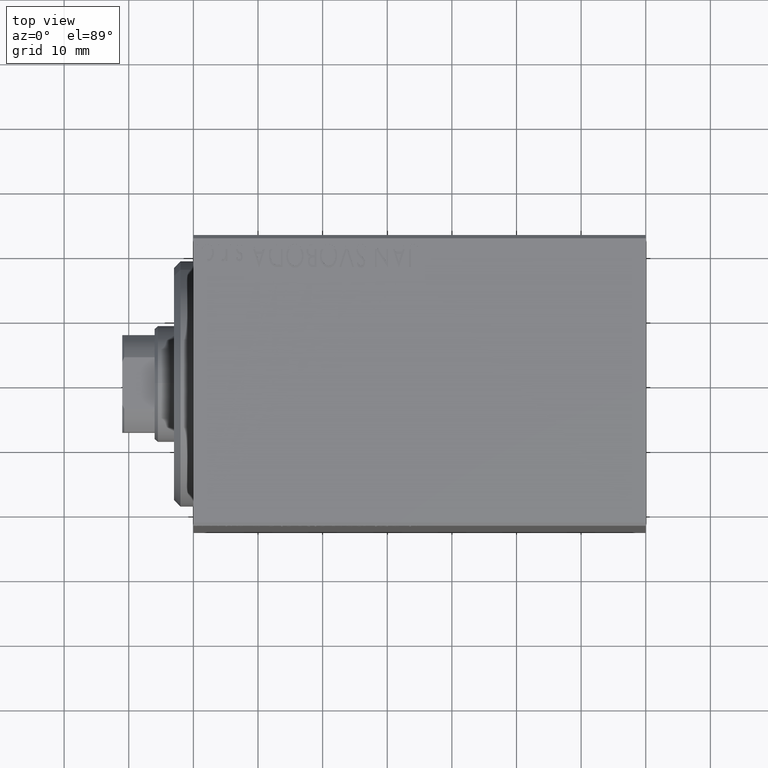
[diagram: clean part render]
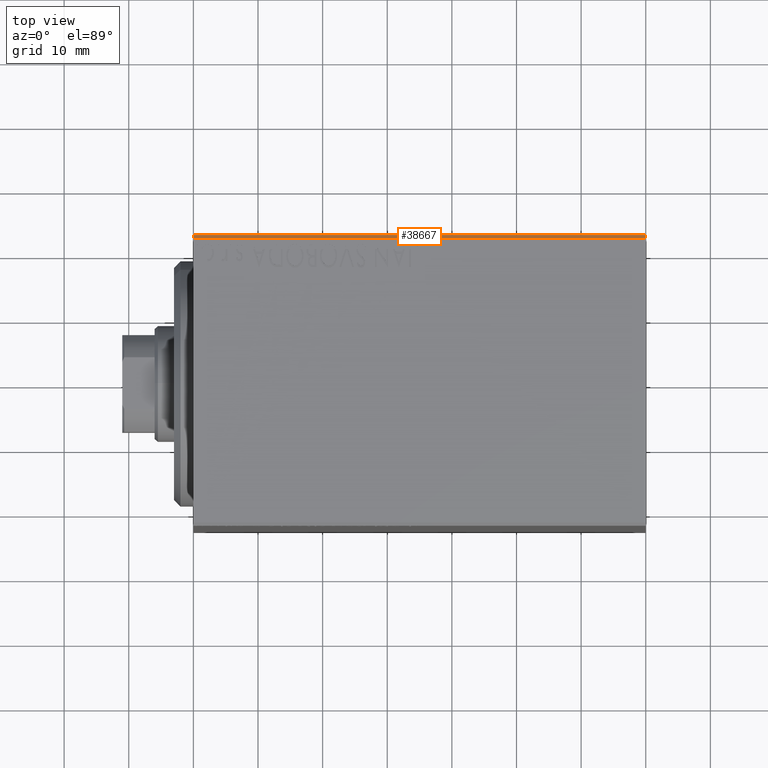
[diagram: same view with one face highlighted and labeled with its STEP entity id]
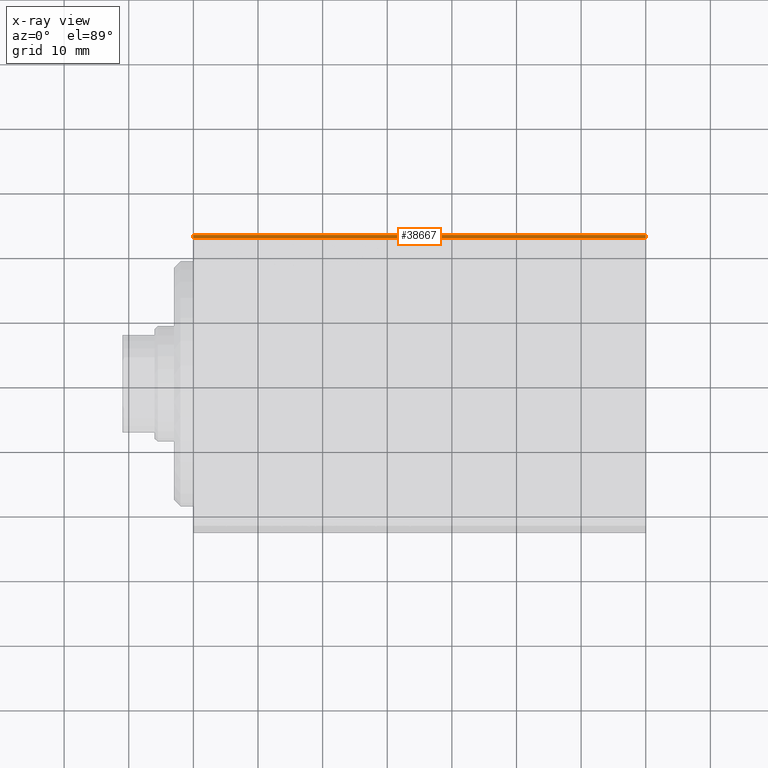
[diagram: x-ray of the same camera — body ghosted, the highlighted face saturated]
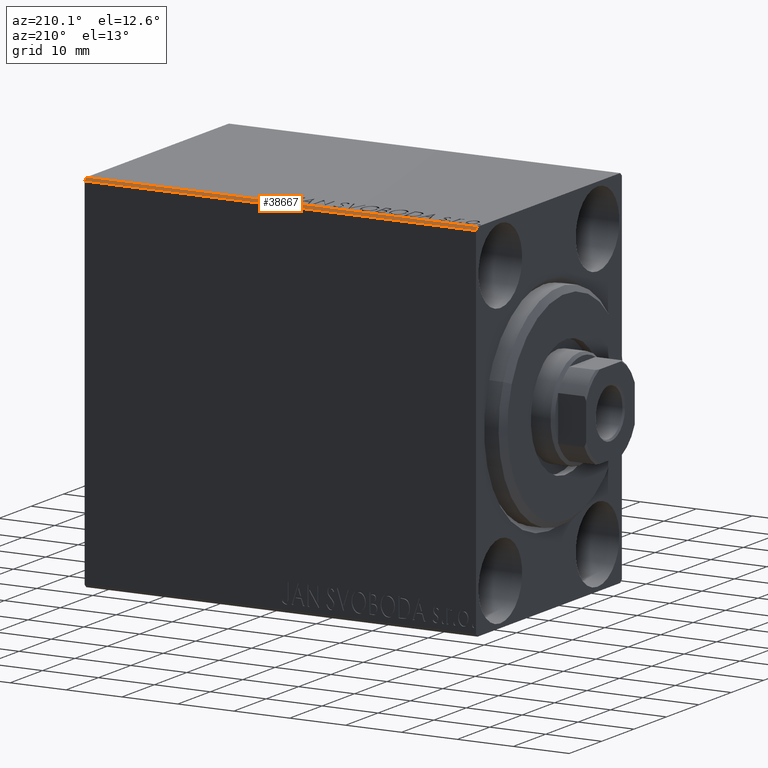
[diagram: same view with one face highlighted and labeled with its STEP entity id]
A machine part, top view. The second image highlights one B-rep face of the part: STEP entity #38667.
The next image is the same camera in x-ray: the body ghosted, the highlighted face saturated — about 0% of this face is hidden behind the body in this view.
A second angle (auxiliary view) of the same face is appended — the face is thin or edge-on in the first view.
In plain terms, the highlighted planar face has unit normal (-0, -0.7071, -0.7071).
Its self-contained STEP definition (entity closure, byte-faithful):
#2121 = VECTOR ( 'NONE', #20027, 999.9999999999998863 ) ;
#3012 = CARTESIAN_POINT ( 'NONE',  ( 70.00000000000000000, 22.49999999999999289, 31.99999999999999289 ) ) ;
#3755 = PLANE ( 'NONE',  #24973 ) ;
#7990 = DIRECTION ( 'NONE',  ( 1.000000000000000000, 0.000000000000000000, 0.000000000000000000 ) ) ;
#11732 = ORIENTED_EDGE ( 'NONE', *, *, #30352, .F. ) ;
#11944 = VECTOR ( 'NONE', #7990, 1000.000000000000000 ) ;
#12875 = CARTESIAN_POINT ( 'NONE',  ( 0.000000000000000000, 21.99999999999999289, 32.50000000000000000 ) ) ;
#13570 = CARTESIAN_POINT ( 'NONE',  ( 0.000000000000000000, 21.99999999999999289, 32.50000000000000000 ) ) ;
#13626 = DIRECTION ( 'NONE',  ( -0.000000000000000000, -0.7071067811865425767, 0.7071067811865525687 ) ) ;
#13690 = LINE ( 'NONE', #30367, #31261 ) ;
#14084 = VECTOR ( 'NONE', #13626, 999.9999999999998863 ) ;
#16877 = FACE_OUTER_BOUND ( 'NONE', #24161, .T. ) ;
#17330 = CARTESIAN_POINT ( 'NONE',  ( 70.00000000000000000, 21.99999999999999289, 32.50000000000000000 ) ) ;
#18107 = ORIENTED_EDGE ( 'NONE', *, *, #29906, .F. ) ;
#18445 = LINE ( 'NONE', #21336, #11944 ) ;
#19017 = VERTEX_POINT ( 'NONE', #43216 ) ;
#20027 = DIRECTION ( 'NONE',  ( -0.000000000000000000, 0.7071067811865425767, -0.7071067811865525687 ) ) ;
#20566 = DIRECTION ( 'NONE',  ( -1.000000000000000000, 0.000000000000000000, 0.000000000000000000 ) ) ;
#21336 = CARTESIAN_POINT ( 'NONE',  ( 70.00000000000000000, 22.49999999999999289, 31.99999999999999289 ) ) ;
#24004 = DIRECTION ( 'NONE',  ( -1.000000000000000000, 0.000000000000000000, 0.000000000000000000 ) ) ;
#24161 = EDGE_LOOP ( 'NONE', ( #31339, #27366, #11732, #18107 ) ) ;
#24479 = EDGE_CURVE ( 'NONE', #35971, #34285, #36966, .T. ) ;
#24932 = EDGE_CURVE ( 'NONE', #19017, #35971, #18445, .T. ) ;
#24973 = AXIS2_PLACEMENT_3D ( 'NONE', #17330, #43781, #24004 ) ;
#27366 = ORIENTED_EDGE ( 'NONE', *, *, #24932, .F. ) ;
#29906 = EDGE_CURVE ( 'NONE', #34285, #43949, #13690, .T. ) ;
#30352 = EDGE_CURVE ( 'NONE', #43949, #19017, #43810, .T. ) ;
#30367 = CARTESIAN_POINT ( 'NONE',  ( 70.00000000000000000, 21.99999999999999289, 32.50000000000000000 ) ) ;
#31261 = VECTOR ( 'NONE', #20566, 1000.000000000000000 ) ;
#31339 = ORIENTED_EDGE ( 'NONE', *, *, #24479, .F. ) ;
#34285 = VERTEX_POINT ( 'NONE', #35026 ) ;
#34318 = CARTESIAN_POINT ( 'NONE',  ( 70.00000000000000000, 27.25000000000014921, 27.24999999999976907 ) ) ;
#35026 = CARTESIAN_POINT ( 'NONE',  ( 70.00000000000000000, 21.99999999999999289, 32.50000000000000000 ) ) ;
#35971 = VERTEX_POINT ( 'NONE', #3012 ) ;
#36966 = LINE ( 'NONE', #34318, #14084 ) ;
#38667 = ADVANCED_FACE ( 'NONE', ( #16877 ), #3755, .F. ) ;
#43216 = CARTESIAN_POINT ( 'NONE',  ( 0.000000000000000000, 22.49999999999999289, 31.99999999999999289 ) ) ;
#43781 = DIRECTION ( 'NONE',  ( -0.000000000000000000, -0.7071067811865524577, -0.7071067811865425767 ) ) ;
#43810 = LINE ( 'NONE', #13570, #2121 ) ;
#43949 = VERTEX_POINT ( 'NONE', #12875 ) ;